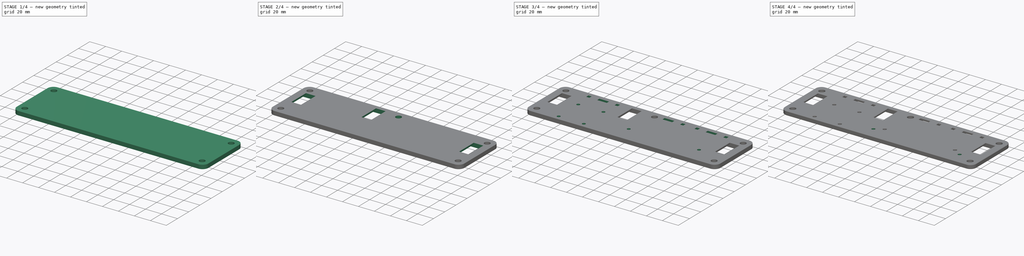
[diagram: build sequence overview — one tinted view per stage of 4, left to right]
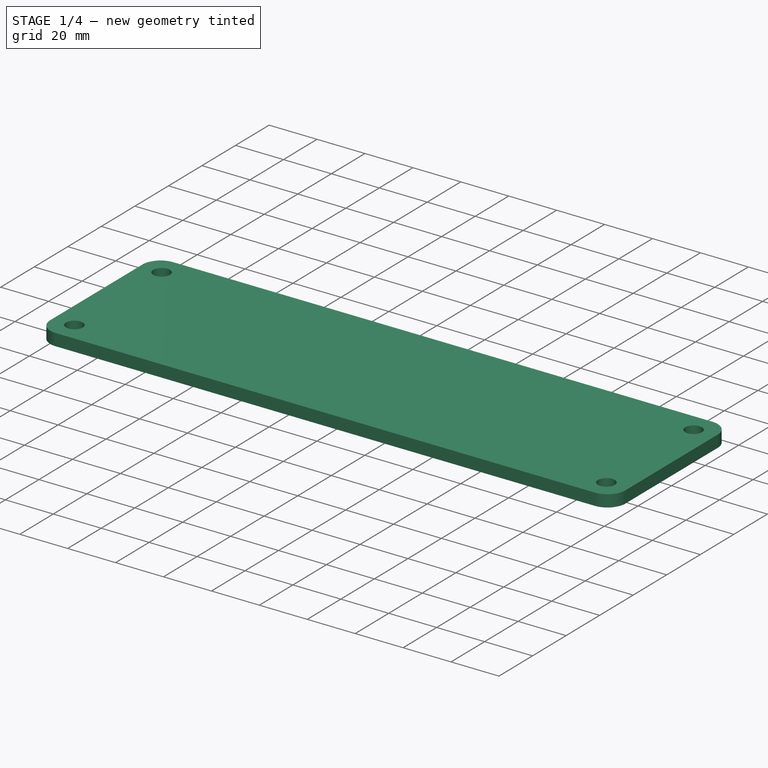
[diagram: stage 1 of 4 — iso view after this stage's code; geometry added in this stage tinted green]
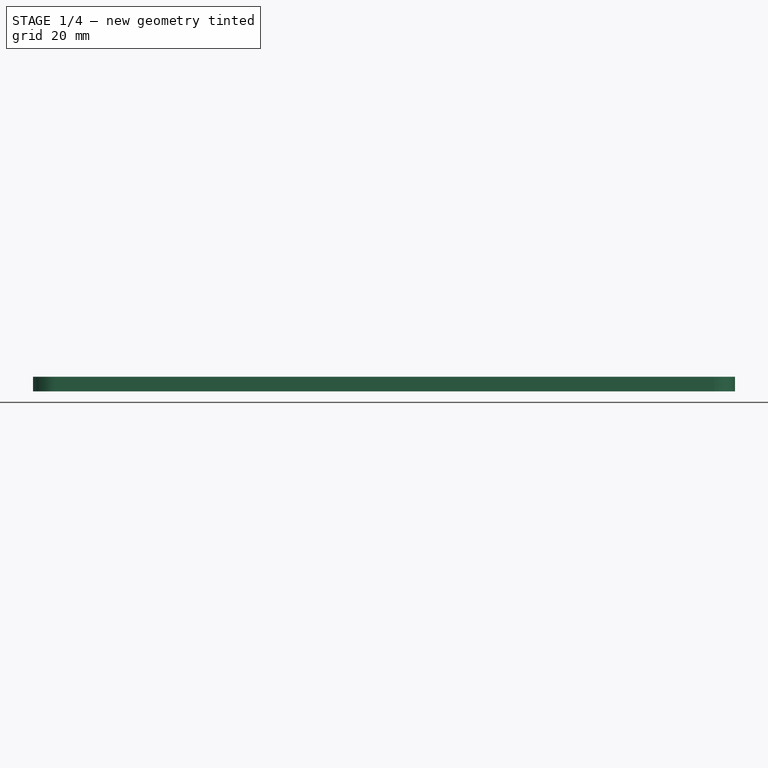
[diagram: stage 1 of 4 — front view after this stage's code; geometry added in this stage tinted green]
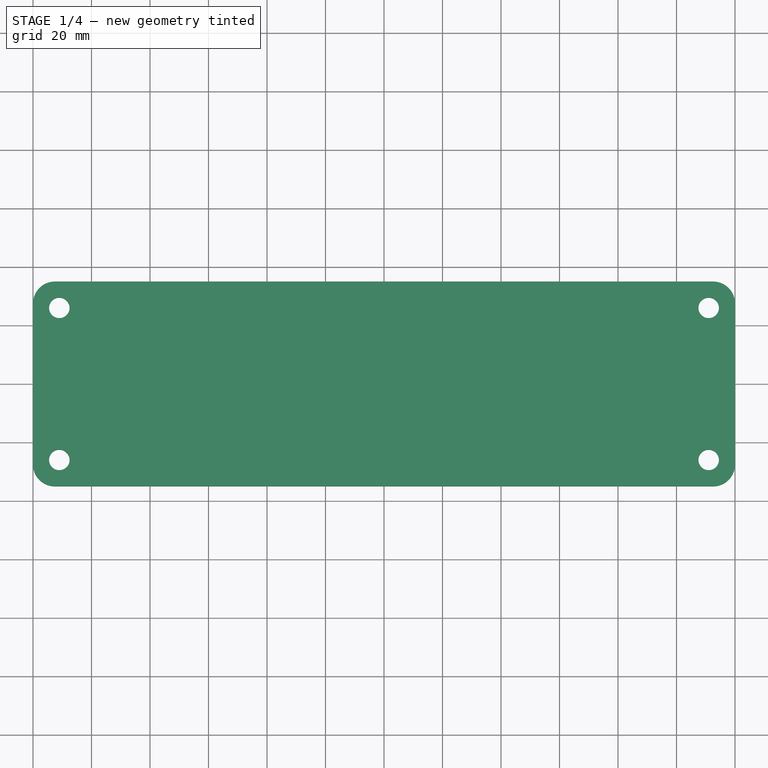
[diagram: stage 1 of 4 — top view after this stage's code; geometry added in this stage tinted green]
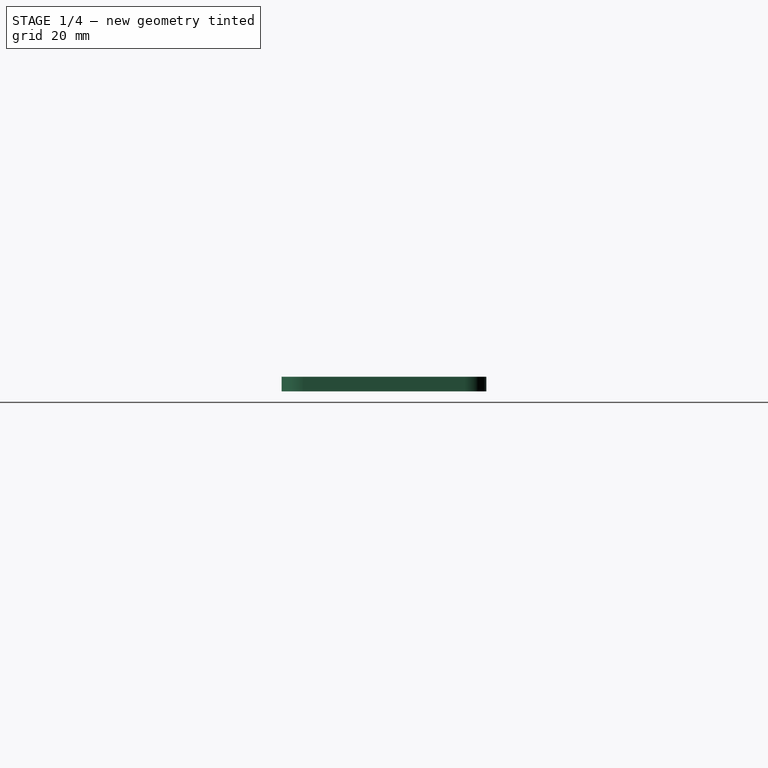
[diagram: stage 1 of 4 — right view after this stage's code; geometry added in this stage tinted green]
FCSTD DOCUMENT  (FreeCAD 0.19R24366 (Git))
Label: electronic-base-plate
License: All rights reserved
LicenseURL: http://en.wikipedia.org/wiki/All_rights_reserved
objects: Sketcher::SketchObject×9, PartDesign::Pocket×8, Part::Feature×3, PartDesign::Chamfer×2, PartDesign::Pad×1, PartDesign::Fillet×1, PartDesign::Body×1
note: 37 computed .brp shape members not serialized (recipe doc carries the construction recipe); baked Part::Feature solids carry a one-line shape summary decoded from their .brp

FEATURE [Sketcher::SketchObject] Sketch
  FullyConstrained = true
  MapMode = 5
  Support = -> [XY_Plane]
  sketch-geometry (4):
    g0: LineSegment StartX=-120 StartY=35 StartZ=0 EndX=120 EndY=35 EndZ=0
    g1: LineSegment StartX=120 StartY=35 StartZ=0 EndX=120 EndY=-35 EndZ=0
    g2: LineSegment StartX=120 StartY=-35 StartZ=0 EndX=-120 EndY=-35 EndZ=0
    g3: LineSegment StartX=-120 StartY=-35 StartZ=0 EndX=-120 EndY=35 EndZ=0
  constraints (12):
    c: Coincident(g0,g1)
    c: Coincident(g1,g2)
    c: Coincident(g2,g3)
    c: Coincident(g3,g0)
    c: Horizontal(g0)
    c: Horizontal(g2)
    c: Vertical(g1)
    c: Vertical(g3)
    c: DistanceX(g0,g0) = 240
    c: DistanceY(g3,g3) = 70
    c: DistanceY(g-1,g0) = 35
    c: DistanceX(g0,g-1) = 120
FEATURE [PartDesign::Pad] Pad
  Direction = (1,1,1)
  Length = 5
  Length2 = 100
  Profile = -> Sketch
  Type = 0
FEATURE [Part::Feature] Part__Feature  label="PCB"
  Placement = pos=(39,-13,8) rot=(0,0,1;0rad)
  shape: bbox 96 x 38 x 1.6 mm, 72 faces (baked)
FEATURE [Part::Feature] Chamfer002001  label="DCDC"
  Placement = pos=(-90.5,-25,5) rot=(0,0,1;0rad)
  shape: bbox 49.5 x 43 x 20 mm, 296 faces (baked)
FEATURE [Sketcher::SketchObject] Sketch001
  FullyConstrained = true
  MapMode = 5
  Placement = pos=(0,0,5) rot=(0,0,1;0rad)
  Support = -> [Pad]
  sketch-geometry (4):
    g0: Circle CenterX=-111 CenterY=26 CenterZ=0 NormalX=0 NormalY=0 NormalZ=1 AngleXU=0 Radius=3.5
    g1: Circle CenterX=-111 CenterY=-26 CenterZ=0 NormalX=0 NormalY=0 NormalZ=1 AngleXU=0 Radius=3.5
    g2: Circle CenterX=111 CenterY=26 CenterZ=0 NormalX=0 NormalY=0 NormalZ=1 AngleXU=0 Radius=3.5
    g3: Circle CenterX=111 CenterY=-26 CenterZ=0 NormalX=0 NormalY=0 NormalZ=1 AngleXU=0 Radius=3.5
  constraints (12):
    c: Horizontal(g0,g2)
    c: Horizontal(g1,g3)
    c: Vertical(g0,g1)
    c: Vertical(g3,g2)
    c: Equal(g0,g1)
    c: Equal(g1,g3)
    c: Equal(g3,g2)
    c: Radius(g0) = 3.5
    c: DistanceX(g0,g-1) = 111
    c: DistanceX(g-1,g2) = 111
    c: DistanceY(g-1,g0) = 26
    c: DistanceY(g1,g-1) = 26
FEATURE [PartDesign::Pocket] Pocket
  BaseFeature = -> Pad
  Length = 5
  Length2 = 100
  Profile = -> Sketch001
  Type = 1
FEATURE [PartDesign::Fillet] Fillet
  Base = -> Pocket [Edge5,Edge1,Edge8,Edge2]
  BaseFeature = -> Pocket
  Radius = 7.5
  SupportTransform = false
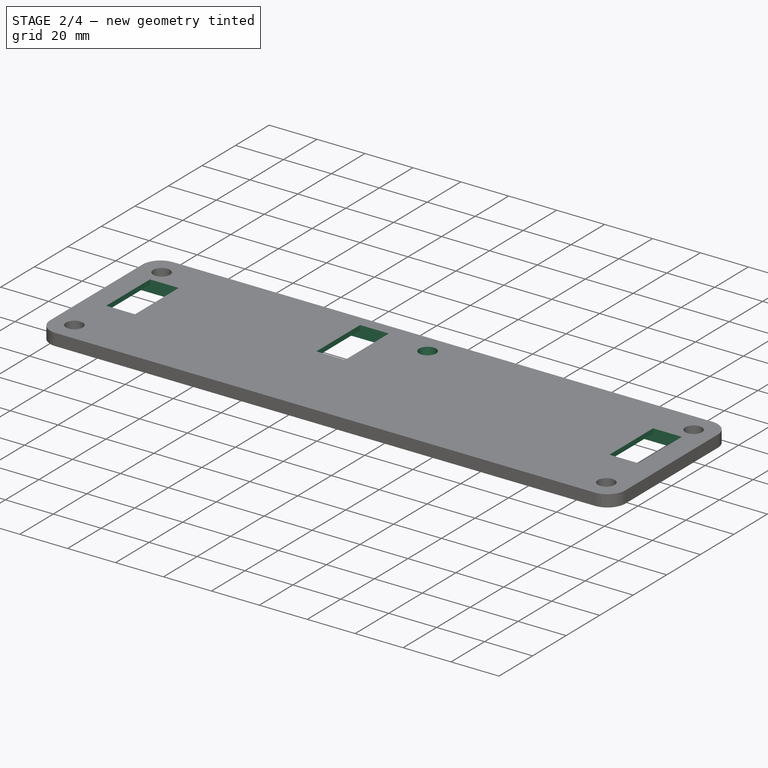
[diagram: stage 2 of 4 — iso view after this stage's code; geometry added in this stage tinted green]
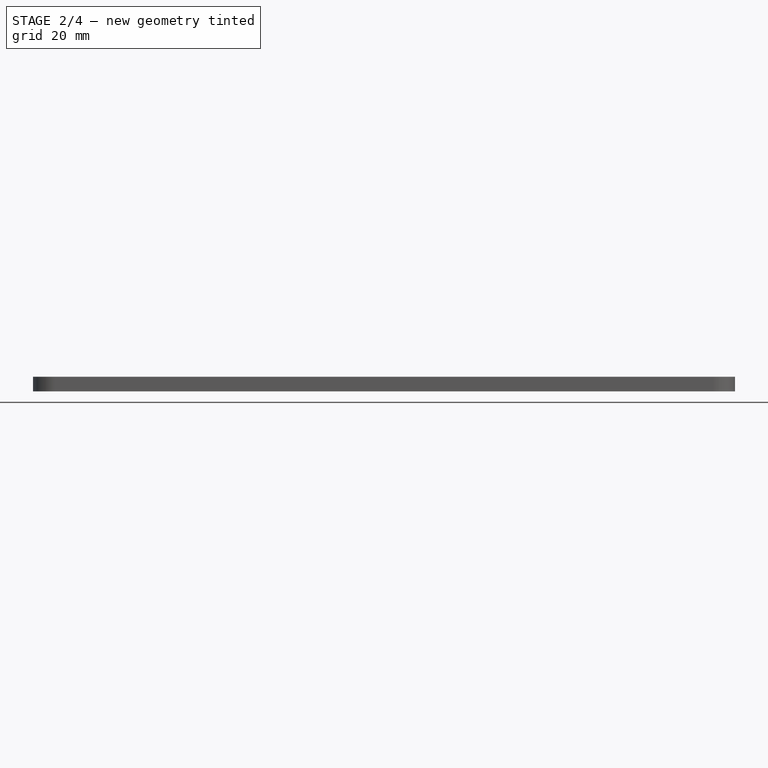
[diagram: stage 2 of 4 — front view after this stage's code; geometry added in this stage tinted green]
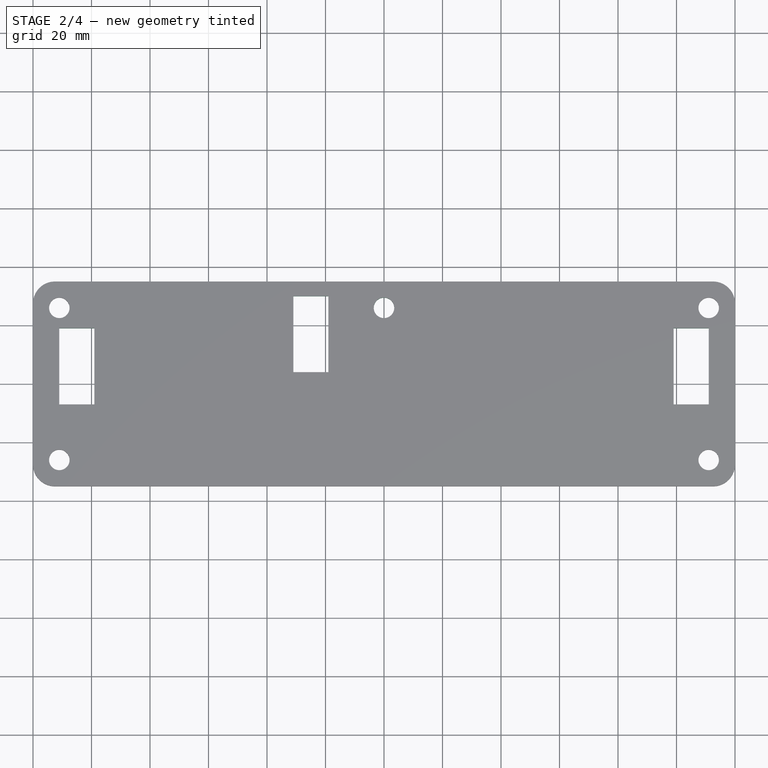
[diagram: stage 2 of 4 — top view after this stage's code; geometry added in this stage tinted green]
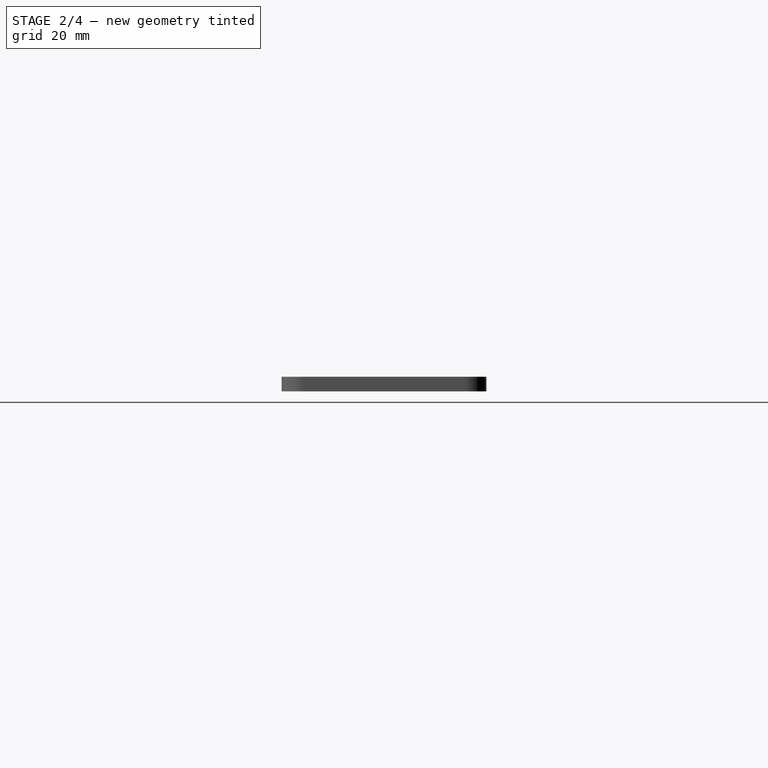
[diagram: stage 2 of 4 — right view after this stage's code; geometry added in this stage tinted green]
FEATURE [Sketcher::SketchObject] Sketch002
  FullyConstrained = true
  MapMode = 5
  Placement = pos=(0,0,0) rot=(1,0,0;3.14159rad)
  Support = -> [Fillet]
  sketch-geometry (12):
    g0: LineSegment StartX=-115 StartY=7 StartZ=0 EndX=-95 EndY=7 EndZ=0
    g1: LineSegment StartX=-95 StartY=7 StartZ=0 EndX=-95 EndY=-19 EndZ=0
    g2: LineSegment StartX=-95 StartY=-19 StartZ=0 EndX=-115 EndY=-19 EndZ=0
    g3: LineSegment StartX=-115 StartY=-19 StartZ=0 EndX=-115 EndY=7 EndZ=0
    g4: LineSegment StartX=115 StartY=7 StartZ=0 EndX=95 EndY=7 EndZ=0
    g5: LineSegment StartX=95 StartY=7 StartZ=0 EndX=95 EndY=-19 EndZ=0
    g6: LineSegment StartX=95 StartY=-19 StartZ=0 EndX=115 EndY=-19 EndZ=0
    g7: LineSegment StartX=115 StartY=-19 StartZ=0 EndX=115 EndY=7 EndZ=0
    g8: LineSegment StartX=-35 StartY=-4 StartZ=0 EndX=-15 EndY=-4 EndZ=0
    g9: LineSegment StartX=-15 StartY=-4 StartZ=0 EndX=-15 EndY=-30 EndZ=0
    g10: LineSegment StartX=-15 StartY=-30 StartZ=0 EndX=-35 EndY=-30 EndZ=0
    g11: LineSegment StartX=-35 StartY=-30 StartZ=0 EndX=-35 EndY=-4 EndZ=0
  constraints (36):
    c: Coincident(g0,g1)
    c: Coincident(g1,g2)
    c: Coincident(g2,g3)
    c: Coincident(g3,g0)
    c: Horizontal(g0)
    c: Horizontal(g2)
    c: Vertical(g1)
    c: Vertical(g3)
    c: Coincident(g4,g5)
    c: Coincident(g5,g6)
    c: Coincident(g6,g7)
    c: Coincident(g7,g4)
    c: Horizontal(g4)
    c: Horizontal(g6)
    c: Vertical(g5)
    c: Vertical(g7)
    c: Horizontal(g0,g4)
    c: Horizontal(g1,g5)
    c: DistanceX(g0,g0) = 20
    c: DistanceX(g4,g4) = 20
    c: DistanceY(g-1,g0) = 7
    c: DistanceX(g0,g-1) = 115
    c: DistanceX(g-1,g4) = 115
    c: DistanceY(g3,g3) = 26
    c: Coincident(g8,g9)
    c: Coincident(g9,g10)
    c: Coincident(g10,g11)
    c: Coincident(g11,g8)
    c: Horizontal(g8)
    c: Horizontal(g10)
    c: Vertical(g9)
    c: Vertical(g11)
    c: Equal(g2,g8)
    c: Equal(g1,g11)
    c: DistanceY(g9,g-1) = 30
    c: DistanceX(g8,g-1) = 15
FEATURE [PartDesign::Pocket] Pocket001
  BaseFeature = -> Fillet
  Length = 3
  Length2 = 100
  Profile = -> Sketch002
  Type = 0
FEATURE [Sketcher::SketchObject] Sketch003
  ExternalGeometry = -> [Pocket001]
  FullyConstrained = true
  MapMode = 5
  Placement = pos=(0,0,3) rot=(1,0,0;3.14159rad)
  Support = -> [Pocket001]
  sketch-geometry (12):
    g0: LineSegment StartX=-111 StartY=7 StartZ=0 EndX=-99 EndY=7 EndZ=0
    g1: LineSegment StartX=-99 StartY=7 StartZ=0 EndX=-99 EndY=-19 EndZ=0
    g2: LineSegment StartX=-99 StartY=-19 StartZ=0 EndX=-111 EndY=-19 EndZ=0
    g3: LineSegment StartX=-111 StartY=-19 StartZ=0 EndX=-111 EndY=7 EndZ=0
    g4: LineSegment StartX=-31 StartY=-4 StartZ=0 EndX=-19 EndY=-4 EndZ=0
    g5: LineSegment StartX=-19 StartY=-4 StartZ=0 EndX=-19 EndY=-30 EndZ=0
    g6: LineSegment StartX=-19 StartY=-30 StartZ=0 EndX=-31 EndY=-30 EndZ=0
    g7: LineSegment StartX=-31 StartY=-30 StartZ=0 EndX=-31 EndY=-4 EndZ=0
    g8: LineSegment StartX=99 StartY=7 StartZ=0 EndX=111 EndY=7 EndZ=0
    g9: LineSegment StartX=111 StartY=7 StartZ=0 EndX=111 EndY=-19 EndZ=0
    g10: LineSegment StartX=111 StartY=-19 StartZ=0 EndX=99 EndY=-19 EndZ=0
    g11: LineSegment StartX=99 StartY=-19 StartZ=0 EndX=99 EndY=7 EndZ=0
  constraints (36):
    c: Coincident(g0,g1)
    c: Coincident(g1,g2)
    c: Coincident(g2,g3)
    c: Coincident(g3,g0)
    c: Horizontal(g0)
    c: Horizontal(g2)
    c: Vertical(g1)
    c: Vertical(g3)
    c: PointOnObject(g0,g-3)
    c: PointOnObject(g1,g-5)
    c: Coincident(g4,g5)
    c: Coincident(g5,g6)
    c: Coincident(g6,g7)
    c: Coincident(g7,g4)
    c: Horizontal(g4)
    c: Horizontal(g6)
    c: Vertical(g5)
    c: Vertical(g7)
    c: PointOnObject(g4,g-4)
    c: PointOnObject(g5,g-6)
    c: Coincident(g8,g9)
    c: Coincident(g9,g10)
    c: Coincident(g10,g11)
    c: Coincident(g11,g8)
    c: Horizontal(g8)
    c: Horizontal(g10)
    c: Vertical(g9)
    c: Vertical(g11)
    c: PointOnObject(g8,g-8)
    c: PointOnObject(g9,g-7)
    c: DistanceX(g0,g0) = 12
    c: DistanceX(g4,g4) = 12
    c: DistanceX(g8,g8) = 12
    c: DistanceX(g-3,g0) = 4
    c: DistanceX(g-4,g4) = 4
    c: DistanceX(g-8,g8) = 4
FEATURE [PartDesign::Pocket] Pocket002
  BaseFeature = -> Pocket001
  Length = 5
  Length2 = 100
  Profile = -> Sketch003
  Type = 1
FEATURE [Sketcher::SketchObject] Sketch004
  FullyConstrained = true
  MapMode = 5
  Placement = pos=(0,0,5) rot=(0,0,1;0rad)
  Support = -> [Pocket002]
  sketch-geometry (1):
    g0: Circle CenterX=0 CenterY=26 CenterZ=0 NormalX=0 NormalY=0 NormalZ=1 AngleXU=0 Radius=3.5
  constraints (3):
    c: Radius(g0) = 3.5
    c: Vertical(g0,g-1)
    c: DistanceY(g-1,g0) = 26
FEATURE [PartDesign::Pocket] Pocket003
  BaseFeature = -> Pocket002
  Length = 5
  Length2 = 100
  Profile = -> Sketch004
  Type = 1
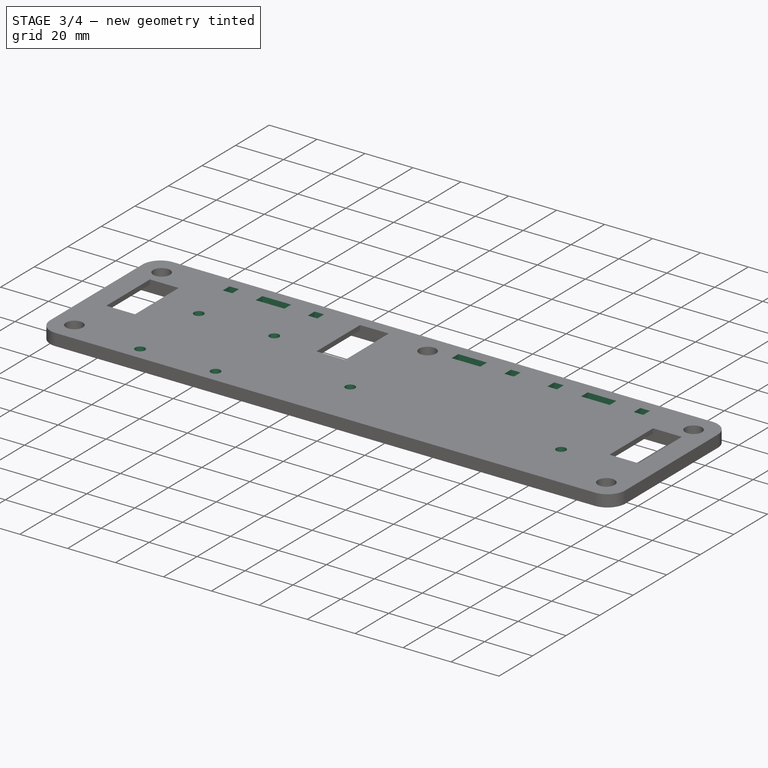
[diagram: stage 3 of 4 — iso view after this stage's code; geometry added in this stage tinted green]
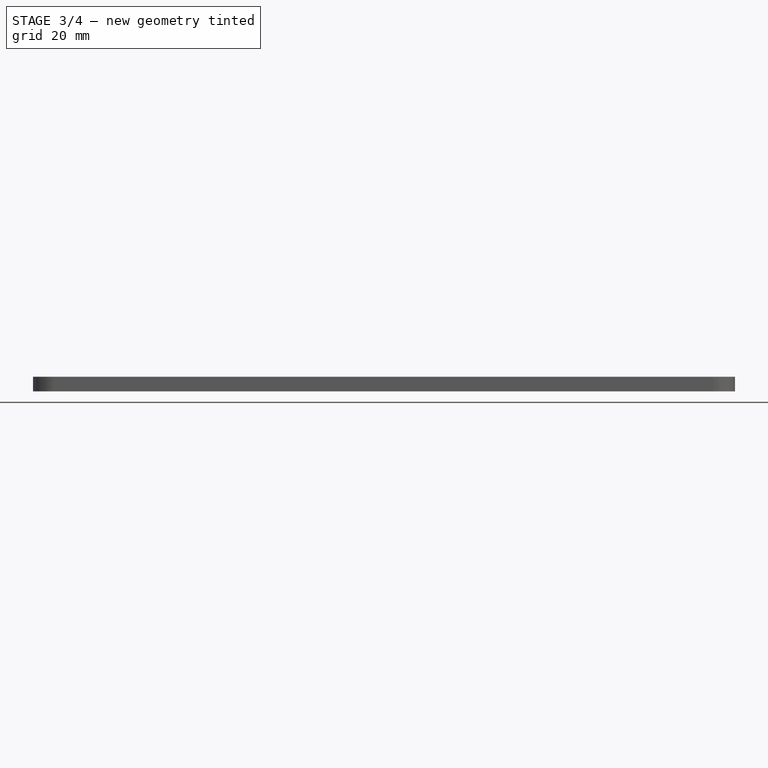
[diagram: stage 3 of 4 — front view after this stage's code; geometry added in this stage tinted green]
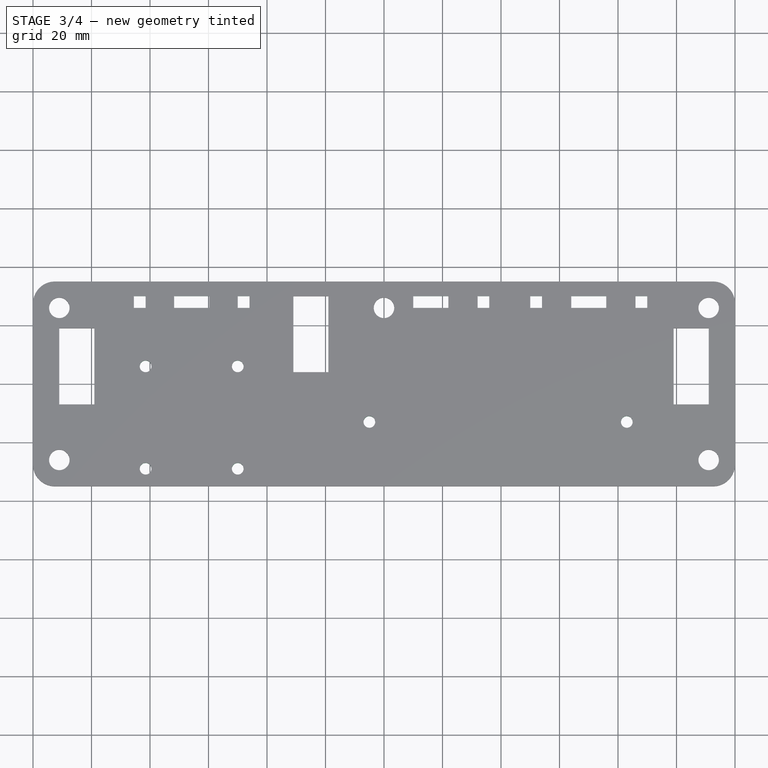
[diagram: stage 3 of 4 — top view after this stage's code; geometry added in this stage tinted green]
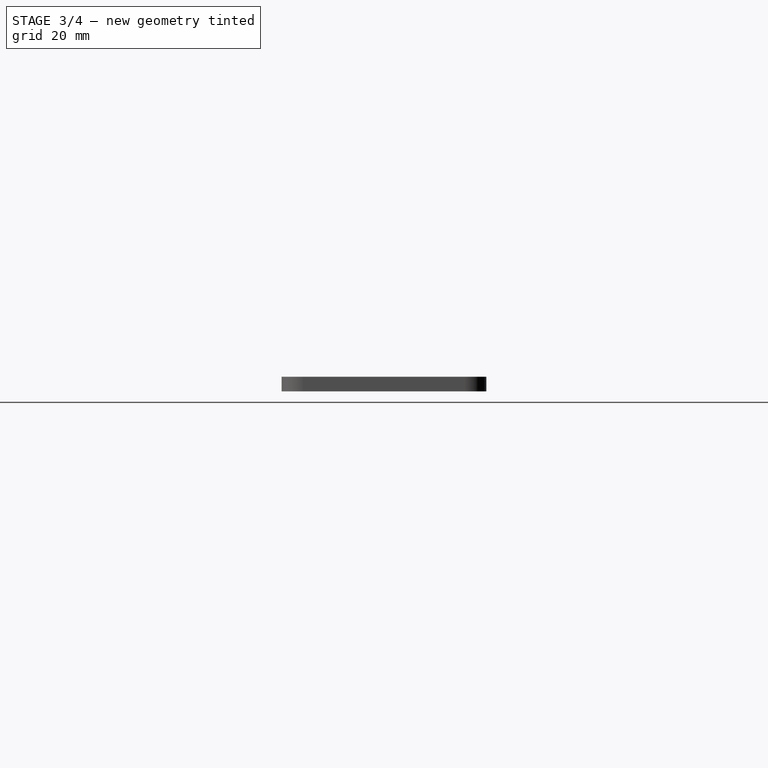
[diagram: stage 3 of 4 — right view after this stage's code; geometry added in this stage tinted green]
FEATURE [Sketcher::SketchObject] Sketch005
  FullyConstrained = true
  MapMode = 5
  Placement = pos=(0,0,0) rot=(1,0,0;3.14159rad)
  Support = -> [Pocket003]
  sketch-geometry (6):
    g0: Circle CenterX=-81.5 CenterY=29 CenterZ=0 NormalX=0 NormalY=0 NormalZ=1 AngleXU=0 Radius=2
    g1: Circle CenterX=-81.5 CenterY=-6 CenterZ=0 NormalX=0 NormalY=0 NormalZ=1 AngleXU=0 Radius=2
    g2: Circle CenterX=-50 CenterY=-6 CenterZ=0 NormalX=0 NormalY=0 NormalZ=1 AngleXU=0 Radius=2
    g3: Circle CenterX=-50 CenterY=29 CenterZ=0 NormalX=0 NormalY=0 NormalZ=1 AngleXU=0 Radius=2
    g4: Circle CenterX=-5 CenterY=13 CenterZ=0 NormalX=0 NormalY=0 NormalZ=1 AngleXU=0 Radius=2
    g5: Circle CenterX=83 CenterY=13 CenterZ=0 NormalX=0 NormalY=0 NormalZ=1 AngleXU=0 Radius=2
  constraints (18):
    c: Horizontal(g4,g5)
    c: DistanceX(g4,g5) = 88
    c: DistanceX(g0,g3) = 31.5
    c: DistanceY(g1,g0) = 35
    c: Vertical(g0,g1)
    c: Vertical(g2,g3)
    c: Horizontal(g0,g3)
    c: Horizontal(g1,g2)
    c: Equal(g0,g1)
    c: Equal(g1,g2)
    c: Equal(g2,g3)
    c: Equal(g3,g4)
    c: Equal(g4,g5)
    c: DistanceY(g-1,g3) = 29
    c: DistanceX(g3,g-1) = 50
    c: DistanceX(g4,g-1) = 5
    c: DistanceY(g-1,g4) = 13
    c: Radius(g5) = 2
FEATURE [PartDesign::Pocket] Pocket004
  BaseFeature = -> Pocket003
  Length = 5
  Length2 = 100
  Profile = -> Sketch005
  Type = 1
FEATURE [Sketcher::SketchObject] Sketch006
  ExternalGeometry = -> [Pocket004]
  FullyConstrained = true
  MapMode = 5
  Placement = pos=(0,0,0) rot=(1,0,0;3.14159rad)
  Support = -> [Pocket004]
  sketch-geometry (32):
    g0: LineSegment StartX=-85.5 StartY=-35 StartZ=0 EndX=-81.5 EndY=-35 EndZ=0
    g1: LineSegment StartX=-81.5 StartY=-35 StartZ=0 EndX=-81.5 EndY=-26 EndZ=0
    g2: LineSegment StartX=-81.5 StartY=-26 StartZ=0 EndX=-85.5 EndY=-26 EndZ=0
    g3: LineSegment StartX=-85.5 StartY=-26 StartZ=0 EndX=-85.5 EndY=-35 EndZ=0
    g4: LineSegment StartX=-71.75 StartY=-35 StartZ=0 EndX=-59.75 EndY=-35 EndZ=0
    g5: LineSegment StartX=-59.75 StartY=-35 StartZ=0 EndX=-59.75 EndY=-26 EndZ=0
    g6: LineSegment StartX=-59.75 StartY=-26 StartZ=0 EndX=-71.75 EndY=-26 EndZ=0
    g7: LineSegment StartX=-71.75 StartY=-26 StartZ=0 EndX=-71.75 EndY=-35 EndZ=0
    g8: LineSegment StartX=-50 StartY=-35 StartZ=0 EndX=-46 EndY=-35 EndZ=0
    g9: LineSegment StartX=-46 StartY=-35 StartZ=0 EndX=-46 EndY=-26 EndZ=0
    g10: LineSegment StartX=-46 StartY=-26 StartZ=0 EndX=-50 EndY=-26 EndZ=0
    g11: LineSegment StartX=-50 StartY=-26 StartZ=0 EndX=-50 EndY=-35 EndZ=0
    g12: LineSegment StartX=10 StartY=-35 StartZ=0 EndX=22 EndY=-35 EndZ=0
    g13: LineSegment StartX=22 StartY=-35 StartZ=0 EndX=22 EndY=-26 EndZ=0
    g14: LineSegment StartX=22 StartY=-26 StartZ=0 EndX=10 EndY=-26 EndZ=0
    g15: LineSegment StartX=10 StartY=-26 StartZ=0 EndX=10 EndY=-35 EndZ=0
    g16: LineSegment StartX=32 StartY=-35 StartZ=0 EndX=36 EndY=-35 EndZ=0
    g17: LineSegment StartX=36 StartY=-35 StartZ=0 EndX=36 EndY=-26 EndZ=0
    g18: LineSegment StartX=36 StartY=-26 StartZ=0 EndX=32 EndY=-26 EndZ=0
    g19: LineSegment StartX=32 StartY=-26 StartZ=0 EndX=32 EndY=-35 EndZ=0
    g20: LineSegment StartX=50 StartY=-26 StartZ=0 EndX=54 EndY=-26 EndZ=0
    g21: LineSegment StartX=54 StartY=-26 StartZ=0 EndX=54 EndY=-35 EndZ=0
    g22: LineSegment StartX=54 StartY=-35 StartZ=0 EndX=50 EndY=-35 EndZ=0
    g23: LineSegment StartX=50 StartY=-35 StartZ=0 EndX=50 EndY=-26 EndZ=0
    g24: LineSegment StartX=64 StartY=-26 StartZ=0 EndX=76 EndY=-26 EndZ=0
    g25: LineSegment StartX=76 StartY=-26 StartZ=0 EndX=76 EndY=-35 EndZ=0
    g26: LineSegment StartX=76 StartY=-35 StartZ=0 EndX=64 EndY=-35 EndZ=0
    g27: LineSegment StartX=64 StartY=-35 StartZ=0 EndX=64 EndY=-26 EndZ=0
    g28: LineSegment StartX=86 StartY=-26 StartZ=0 EndX=90 EndY=-26 EndZ=0
    g29: LineSegment StartX=90 StartY=-26 StartZ=0 EndX=90 EndY=-35 EndZ=0
    g30: LineSegment StartX=90 StartY=-35 StartZ=0 EndX=86 EndY=-35 EndZ=0
    g31: LineSegment StartX=86 StartY=-35 StartZ=0 EndX=86 EndY=-26 EndZ=0
  constraints (96):
    c: Coincident(g0,g1)
    c: Coincident(g1,g2)
    c: Coincident(g2,g3)
    c: Coincident(g3,g0)
    c: Horizontal(g0)
    c: Horizontal(g2)
    c: Vertical(g1)
    c: Vertical(g3)
    c: Coincident(g4,g5)
    c: Coincident(g5,g6)
    c: Coincident(g6,g7)
    c: Coincident(g7,g4)
    c: Horizontal(g4)
    c: Horizontal(g6)
    c: Vertical(g5)
    c: Vertical(g7)
    c: Coincident(g8,g9)
    c: Coincident(g9,g10)
    c: Coincident(g10,g11)
    c: Coincident(g11,g8)
    c: Horizontal(g8)
    c: Horizontal(g10)
    c: Vertical(g9)
    c: Vertical(g11)
    c: Coincident(g12,g13)
    c: Coincident(g13,g14)
    c: Coincident(g14,g15)
    c: Coincident(g15,g12)
    c: Horizontal(g12)
    c: Horizontal(g14)
    c: Vertical(g13)
    c: Vertical(g15)
    c: Coincident(g16,g17)
    c: Coincident(g17,g18)
    c: Coincident(g18,g19)
    c: Coincident(g19,g16)
    c: Horizontal(g16)
    c: Horizontal(g18)
    c: Vertical(g17)
    c: Vertical(g19)
    c: Coincident(g20,g21)
    c: Coincident(g21,g22)
    c: Coincident(g22,g23)
    c: Coincident(g23,g20)
    c: Horizontal(g20)
    c: Horizontal(g22)
    c: Vertical(g21)
    c: Vertical(g23)
    c: Coincident(g24,g25)
    c: Coincident(g25,g26)
    c: Coincident(g26,g27)
    c: Coincident(g27,g24)
    c: Horizontal(g24)
    c: Horizontal(g26)
    c: Vertical(g25)
    c: Vertical(g27)
    c: Coincident(g28,g29)
    c: Coincident(g29,g30)
    c: Coincident(g30,g31)
    c: Coincident(g31,g28)
    c: Horizontal(g28)
    c: Horizontal(g30)
    c: Vertical(g29)
    c: Vertical(g31)
    c: Horizontal(g0,g4)
    c: Horizontal(g4,g8)
    c: Horizontal(g8,g12)
    c: Horizontal(g12,g16)
    c: Horizontal(g16,g21)
    c: Horizontal(g21,g25)
    c: Horizontal(g25,g29)
    c: Horizontal(g1,g5)
    c: Horizontal(g5,g9)
    c: Horizontal(g9,g13)
    c: Horizontal(g13,g17)
    c: Horizontal(g17,g20)
    c: Horizontal(g20,g24)
    c: Horizontal(g24,g28)
    c: Equal(g2,g10)
    c: Equal(g10,g18)
    c: Equal(g18,g20)
    c: Equal(g20,g28)
    c: DistanceX(g2,g2) = 4
    c: Equal(g6,g14)
    c: Equal(g14,g24)
    c: DistanceX(g6,g6) = 12
    c: DistanceY(g3,g3) = 9
    c: DistanceY(g0,g-1) = 35
    c: DistanceX(g1,g-1) = 81.5
    c: DistanceX(g10,g-1) = 50
    c: DistanceX(g1,g6) = 9.75
    c: DistanceX(g-1,g14) = 10
    c: DistanceX(g13,g18) = 10
    c: DistanceX(g-1,g28) = 90
    c: DistanceX(g24,g28) = 10
    c: DistanceX(g20,g24) = 10
FEATURE [PartDesign::Pocket] Pocket005
  BaseFeature = -> Pocket004
  Length = 2.5
  Length2 = 100
  Profile = -> Sketch006
  Type = 0
FEATURE [Sketcher::SketchObject] Sketch007
  ExternalGeometry = -> [Pocket005]
  FullyConstrained = true
  MapMode = 5
  Placement = pos=(0,0,2.5) rot=(1,0,0;3.14159rad)
  Support = -> [Pocket005]
  sketch-geometry (32):
    g0: LineSegment StartX=-85.5 StartY=-26 StartZ=0 EndX=-81.5 EndY=-26 EndZ=0
    g1: LineSegment StartX=-81.5 StartY=-26 StartZ=0 EndX=-81.5 EndY=-30 EndZ=0
    g2: LineSegment StartX=-81.5 StartY=-30 StartZ=0 EndX=-85.5 EndY=-30 EndZ=0
    g3: LineSegment StartX=-85.5 StartY=-30 StartZ=0 EndX=-85.5 EndY=-26 EndZ=0
    g4: LineSegment StartX=-71.75 StartY=-26 StartZ=0 EndX=-59.75 EndY=-26 EndZ=0
    g5: LineSegment StartX=-59.75 StartY=-26 StartZ=0 EndX=-59.75 EndY=-30 EndZ=0
    g6: LineSegment StartX=-59.75 StartY=-30 StartZ=0 EndX=-71.75 EndY=-30 EndZ=0
    g7: LineSegment StartX=-71.75 StartY=-30 StartZ=0 EndX=-71.75 EndY=-26 EndZ=0
    g8: LineSegment StartX=-50 StartY=-26 StartZ=0 EndX=-46 EndY=-26 EndZ=0
    g9: LineSegment StartX=-46 StartY=-26 StartZ=0 EndX=-46 EndY=-30 EndZ=0
    g10: LineSegment StartX=-46 StartY=-30 StartZ=0 EndX=-50 EndY=-30 EndZ=0
    g11: LineSegment StartX=-50 StartY=-30 StartZ=0 EndX=-50 EndY=-26 EndZ=0
    g12: LineSegment StartX=10 StartY=-26 StartZ=0 EndX=22 EndY=-26 EndZ=0
    g13: LineSegment StartX=22 StartY=-26 StartZ=0 EndX=22 EndY=-30 EndZ=0
    g14: LineSegment StartX=22 StartY=-30 StartZ=0 EndX=10 EndY=-30 EndZ=0
    g15: LineSegment StartX=10 StartY=-30 StartZ=0 EndX=10 EndY=-26 EndZ=0
    g16: LineSegment StartX=32 StartY=-26 StartZ=0 EndX=36 EndY=-26 EndZ=0
    g17: LineSegment StartX=36 StartY=-26 StartZ=0 EndX=36 EndY=-30 EndZ=0
    g18: LineSegment StartX=36 StartY=-30 StartZ=0 EndX=32 EndY=-30 EndZ=0
    g19: LineSegment StartX=32 StartY=-30 StartZ=0 EndX=32 EndY=-26 EndZ=0
    g20: LineSegment StartX=50 StartY=-26 StartZ=0 EndX=54 EndY=-26 EndZ=0
    g21: LineSegment StartX=54 StartY=-26 StartZ=0 EndX=54 EndY=-30 EndZ=0
    g22: LineSegment StartX=54 StartY=-30 StartZ=0 EndX=50 EndY=-30 EndZ=0
    g23: LineSegment StartX=50 StartY=-30 StartZ=0 EndX=50 EndY=-26 EndZ=0
    g24: LineSegment StartX=64 StartY=-26 StartZ=0 EndX=76 EndY=-26 EndZ=0
    g25: LineSegment StartX=76 StartY=-26 StartZ=0 EndX=76 EndY=-30 EndZ=0
    g26: LineSegment StartX=76 StartY=-30 StartZ=0 EndX=64 EndY=-30 EndZ=0
    g27: LineSegment StartX=64 StartY=-30 StartZ=0 EndX=64 EndY=-26 EndZ=0
    g28: LineSegment StartX=86 StartY=-26 StartZ=0 EndX=90 EndY=-26 EndZ=0
    g29: LineSegment StartX=90 StartY=-26 StartZ=0 EndX=90 EndY=-30 EndZ=0
    g30: LineSegment StartX=90 StartY=-30 StartZ=0 EndX=86 EndY=-30 EndZ=0
    g31: LineSegment StartX=86 StartY=-30 StartZ=0 EndX=86 EndY=-26 EndZ=0
  constraints (88):
    c: Coincident(g0,g1)
    c: Coincident(g1,g2)
    c: Coincident(g2,g3)
    c: Coincident(g3,g0)
    c: Horizontal(g0)
    c: Horizontal(g2)
    c: Vertical(g1)
    c: Vertical(g3)
    c: Coincident(g0,g-3)
    c: PointOnObject(g1,g-4)
    c: Coincident(g4,g5)
    c: Coincident(g5,g6)
    c: Coincident(g6,g7)
    c: Coincident(g7,g4)
    c: Horizontal(g4)
    c: Horizontal(g6)
    c: Vertical(g5)
    c: Vertical(g7)
    c: Coincident(g4,g-5)
    c: PointOnObject(g5,g-6)
    c: Coincident(g8,g9)
    c: Coincident(g9,g10)
    c: Coincident(g10,g11)
    c: Coincident(g11,g8)
    c: Horizontal(g8)
    c: Horizontal(g10)
    c: Vertical(g9)
    c: Vertical(g11)
    c: Coincident(g8,g-7)
    c: PointOnObject(g9,g-8)
    c: Coincident(g12,g13)
    c: Coincident(g13,g14)
    c: Coincident(g14,g15)
    c: Coincident(g15,g12)
    c: Horizontal(g12)
    c: Horizontal(g14)
    c: Vertical(g13)
    c: Vertical(g15)
    c: Coincident(g12,g-9)
    c: PointOnObject(g13,g-10)
    c: Coincident(g16,g17)
    c: Coincident(g17,g18)
    c: Coincident(g18,g19)
    c: Coincident(g19,g16)
    c: Horizontal(g16)
    c: Horizontal(g18)
    c: Vertical(g17)
    c: Vertical(g19)
    c: Coincident(g16,g-11)
    c: PointOnObject(g17,g-12)
    c: Coincident(g20,g21)
    c: Coincident(g21,g22)
    c: Coincident(g22,g23)
    c: Coincident(g23,g20)
    c: Horizontal(g20)
    c: Horizontal(g22)
    c: Vertical(g21)
    c: Vertical(g23)
    c: Coincident(g20,g-13)
    c: PointOnObject(g21,g-14)
    c: Coincident(g24,g25)
    c: Coincident(g25,g26)
    c: Coincident(g26,g27)
    c: Coincident(g27,g24)
    c: Horizontal(g24)
    c: Horizontal(g26)
    c: Vertical(g25)
    c: Vertical(g27)
    c: Coincident(g24,g-15)
    c: PointOnObject(g25,g-16)
    c: Coincident(g28,g29)
    c: Coincident(g29,g30)
    c: Coincident(g30,g31)
    c: Coincident(g31,g28)
    c: Horizontal(g28)
    c: Horizontal(g30)
    c: Vertical(g29)
    c: Vertical(g31)
    c: Coincident(g28,g-17)
    c: PointOnObject(g29,g-18)
    c: Horizontal(g1,g5)
    c: Horizontal(g5,g9)
    c: Horizontal(g9,g13)
    c: Horizontal(g13,g17)
    c: Horizontal(g17,g21)
    c: Horizontal(g21,g25)
    c: Horizontal(g25,g29)
    c: DistanceY(g2,g0) = 4
FEATURE [PartDesign::Pocket] Pocket006
  BaseFeature = -> Pocket005
  Length = 5
  Length2 = 100
  Profile = -> Sketch007
  Type = 1
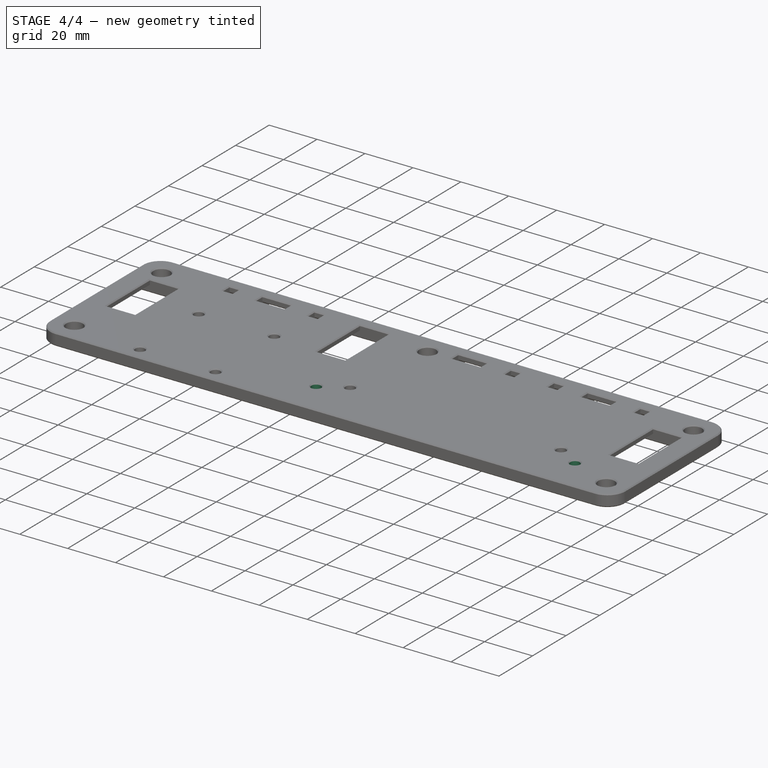
[diagram: stage 4 of 4 — iso view after this stage's code; geometry added in this stage tinted green]
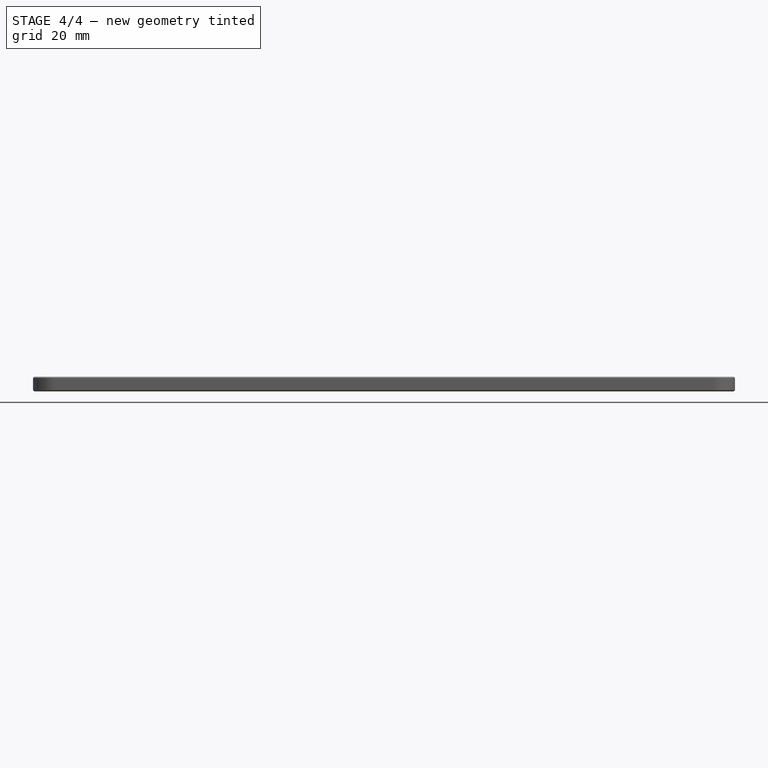
[diagram: stage 4 of 4 — front view after this stage's code; geometry added in this stage tinted green]
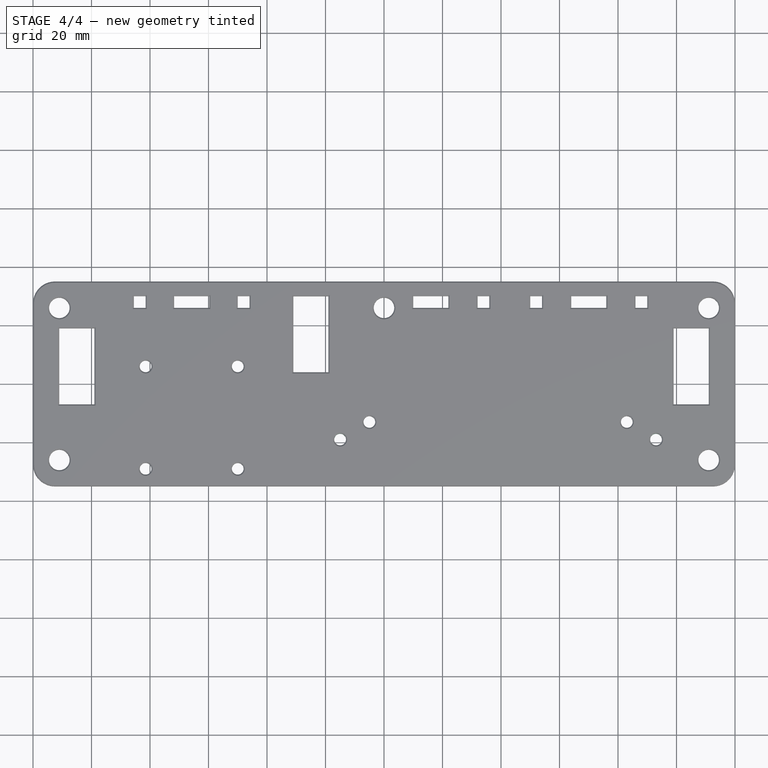
[diagram: stage 4 of 4 — top view after this stage's code; geometry added in this stage tinted green]
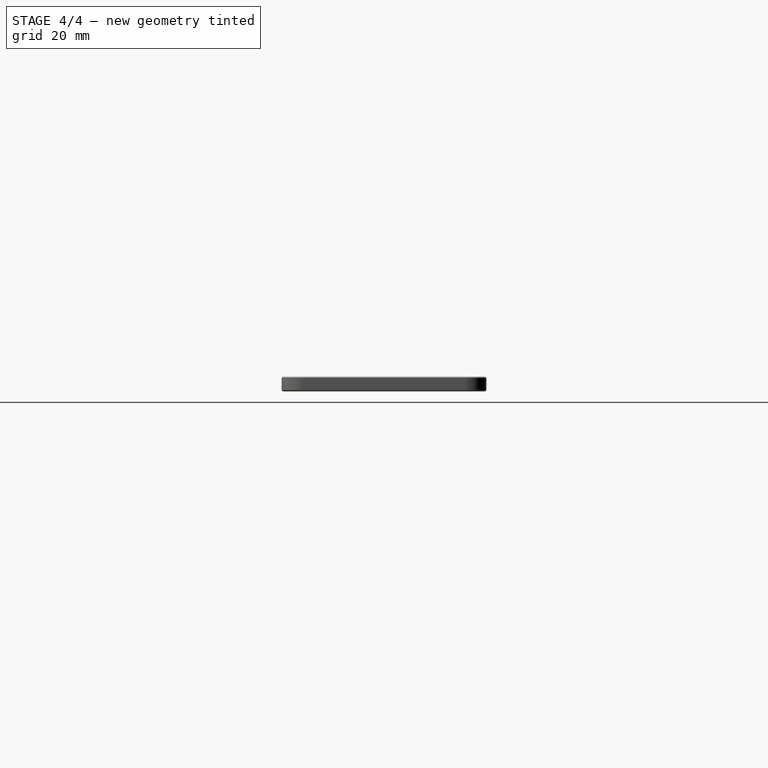
[diagram: stage 4 of 4 — right view after this stage's code; geometry added in this stage tinted green]
FEATURE [Sketcher::SketchObject] Sketch008
  ExternalGeometry = -> [Pocket006]
  FullyConstrained = true
  MapMode = 5
  Placement = pos=(0,0,0) rot=(1,0,0;3.14159rad)
  Support = -> [Pocket006]
  sketch-geometry (2):
    g0: Circle CenterX=-15 CenterY=19 CenterZ=0 NormalX=0 NormalY=0 NormalZ=1 AngleXU=0 Radius=2
    g1: Circle CenterX=93 CenterY=19 CenterZ=0 NormalX=0 NormalY=0 NormalZ=1 AngleXU=0 Radius=2
  constraints (6):
    c: Horizontal(g1,g0)
    c: Equal(g0,g1)
    c: Radius(g0) = 2
    c: DistanceX(g0,g-3) = 10
    c: DistanceX(g-4,g1) = 10
    c: DistanceY(g-3,g0) = 6
FEATURE [PartDesign::Pocket] Pocket007
  BaseFeature = -> Pocket006
  Length = 5
  Length2 = 100
  Profile = -> Sketch008
  Refine = true
  Type = 1
FEATURE [PartDesign::Chamfer] Chamfer
  Angle = 45
  Base = -> Pocket007 [Edge94,Edge97,Edge100,Edge103,Edge106,Edge110,Edge113,Edge116,Edge31,Edge27,Edge23,Edge19,Edge15,Edge11,Edge7,Edge3]
  BaseFeature = -> Pocket007
  ChamferType = 0
  FlipDirection = false
  Size = 0.4
  Size2 = 1
  SupportTransform = false
FEATURE [PartDesign::Chamfer] Chamfer002004002
  Angle = 45
  Base = -> Chamfer [Face4,Face7]
  BaseFeature = -> Chamfer
  ChamferType = 0
  FlipDirection = false
  Size = 0.4
  Size2 = 1
  SupportTransform = false
FEATURE [PartDesign::Body] Body
  Group = -> [Sketch,Pad,Sketch001,Pocket,Fillet,Sketch002,Pocket001,Sketch003,Pocket002,Sketch004,Pocket003,Sketch005,Pocket004,Sketch006,Pocket005,Sketch007,Pocket006,Sketch008,Pocket007,Chamfer,Chamfer002004002]
  Origin = -> Origin
  Tip = -> Chamfer002004002
FEATURE [Part::Feature] Chamfer002004003
  Placement = pos=(39,-13,17.5) rot=(0,0,1;0rad)
  shape: bbox 116 x 22 x 12.5 mm, 36 faces (baked)
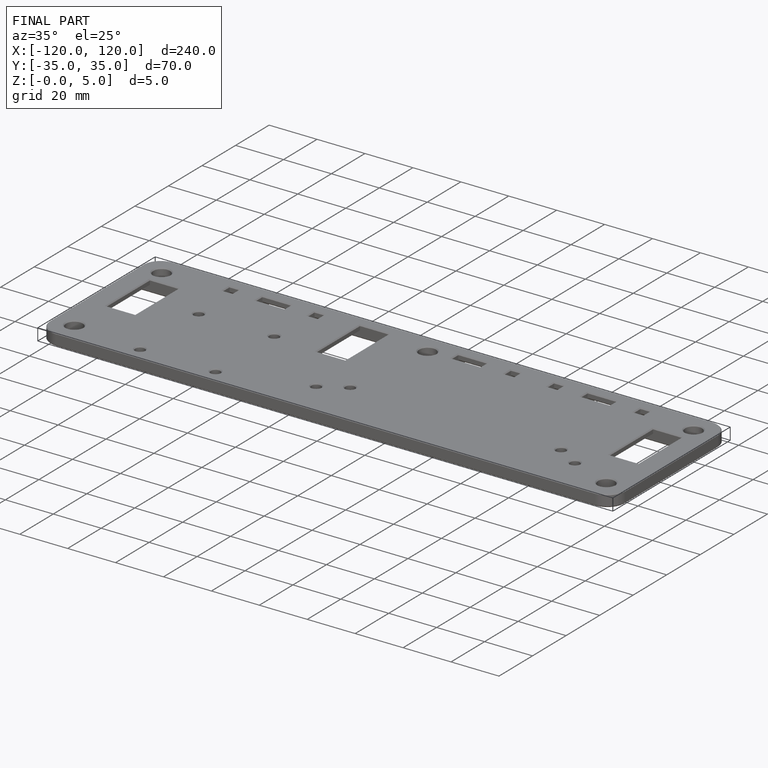
[diagram: finished part — iso view with bounding-box wireframe]
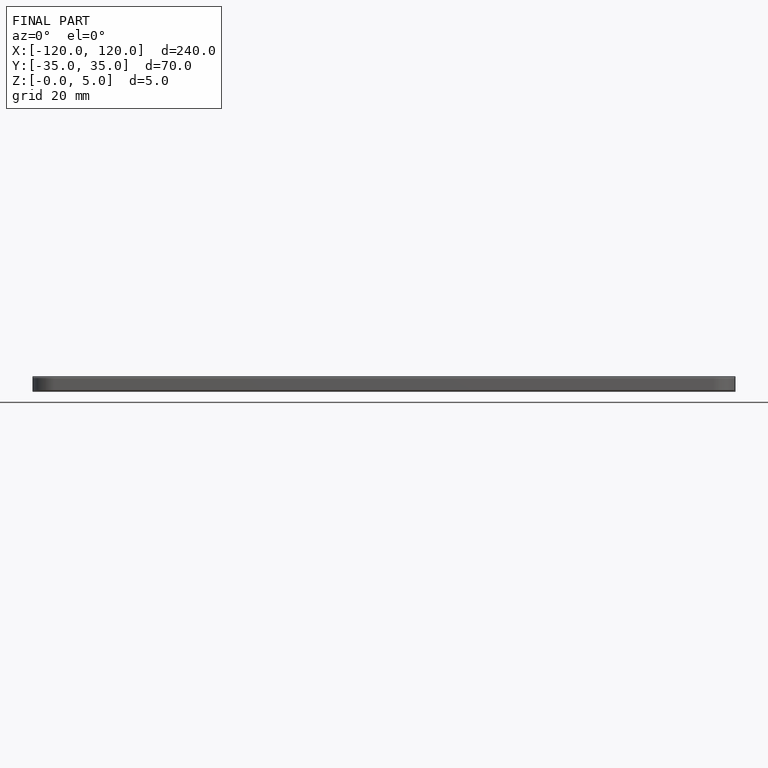
[diagram: finished part — front view with bounding-box wireframe]
